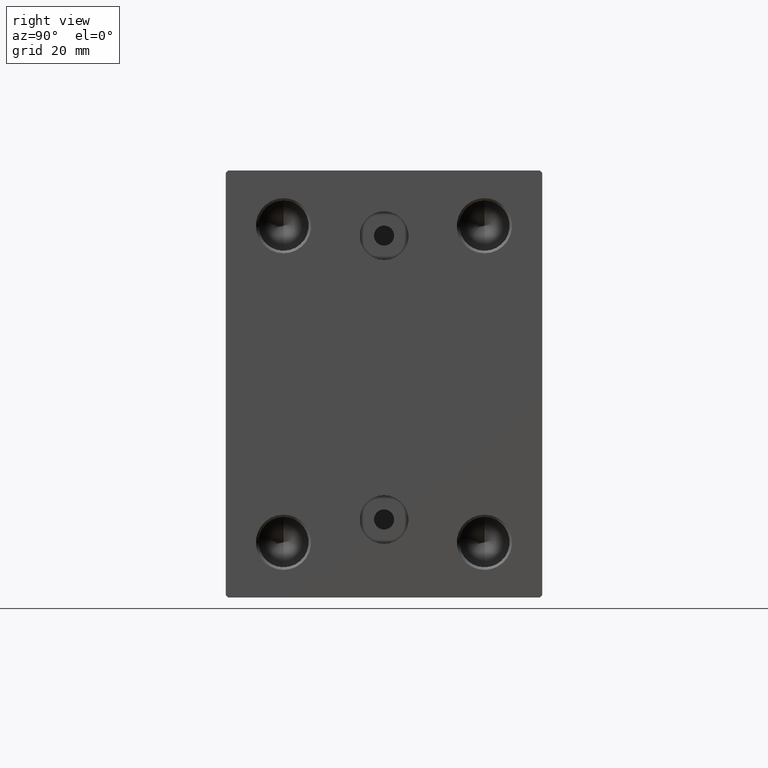
[diagram: clean part render]
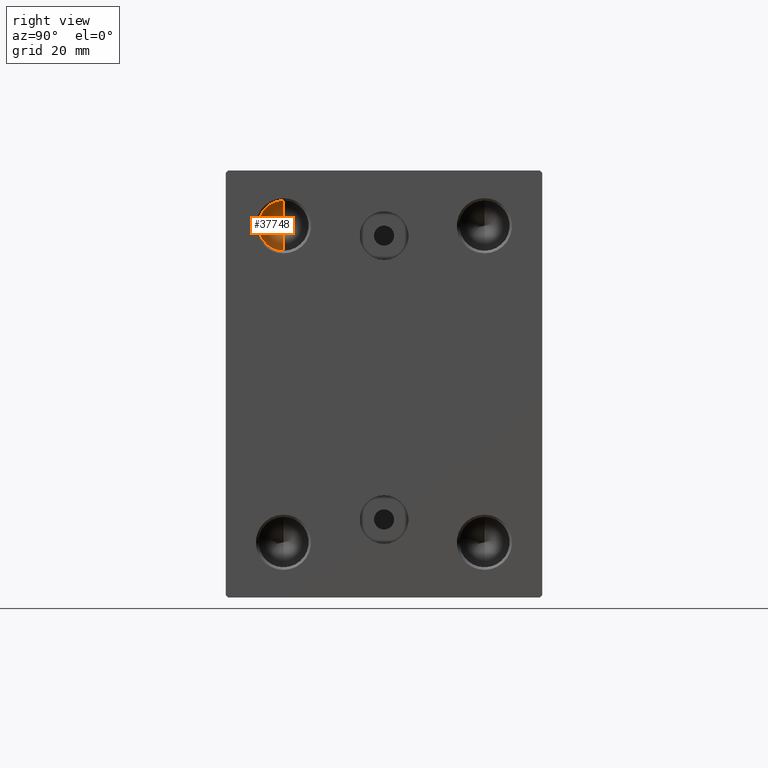
[diagram: same view with one face highlighted and labeled with its STEP entity id]
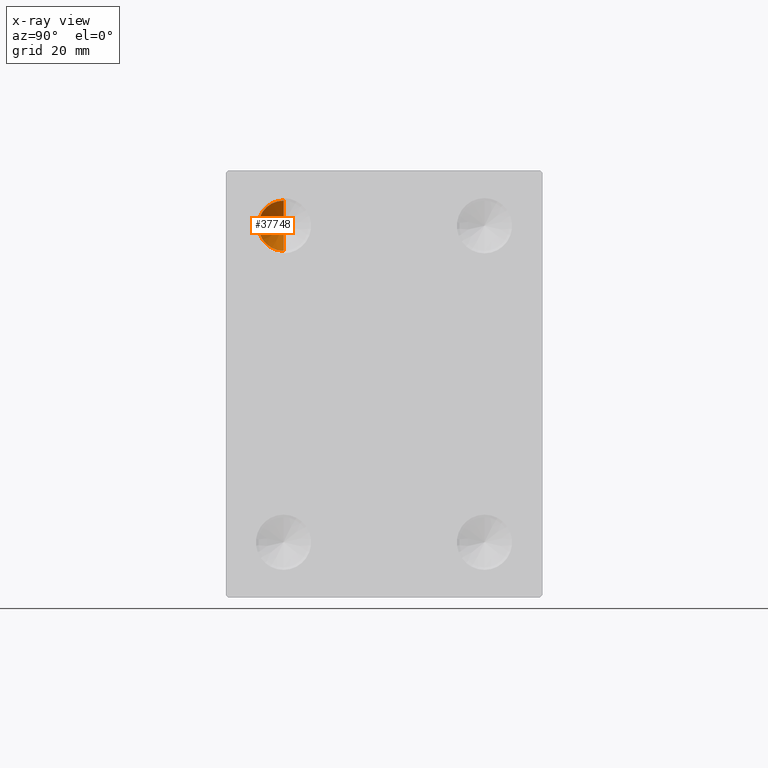
[diagram: x-ray of the same camera — body ghosted, the highlighted face saturated]
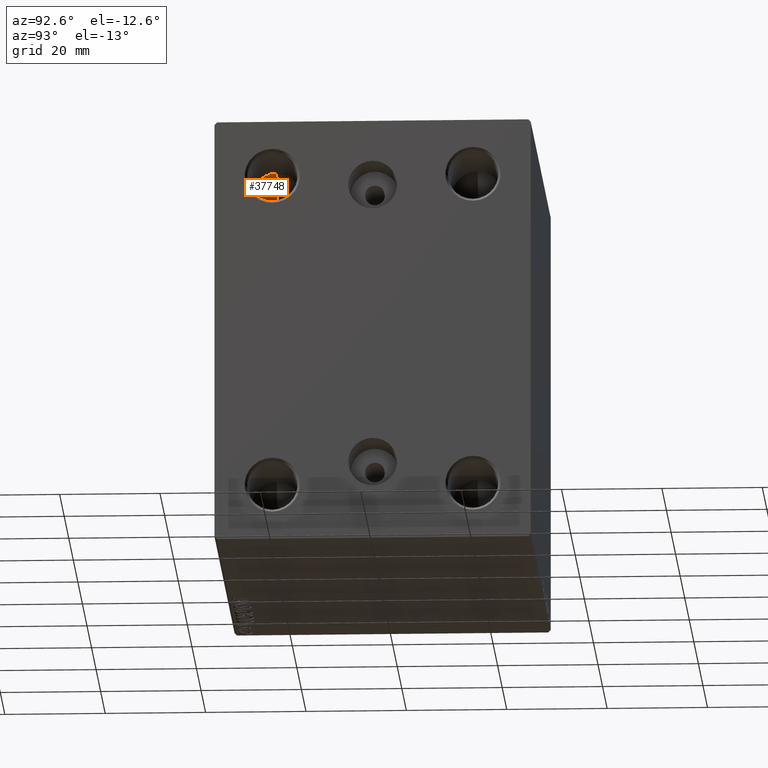
[diagram: same view with one face highlighted and labeled with its STEP entity id]
A machine part, right view. The second image highlights one B-rep face of the part: STEP entity #37748.
The next image is the same camera in x-ray: the body ghosted, the highlighted face saturated — about 0% of this face is hidden behind the body in this view.
A second angle (auxiliary view) of the same face is appended — the face is thin or edge-on in the first view.
In plain terms, the highlighted conical surface has half-angle 59 deg.
Its self-contained STEP definition (entity closure, byte-faithful):
#2746 = EDGE_CURVE ( 'NONE', #36286, #34680, #5107, .T. ) ;
#2866 = AXIS2_PLACEMENT_3D ( 'NONE', #16438, #20011, #40522 ) ;
#2985 = ORIENTED_EDGE ( 'NONE', *, *, #15888, .T. ) ;
#3521 = CIRCLE ( 'NONE', #34171, 4.999999999999997335 ) ;
#5107 = LINE ( 'NONE', #29643, #19697 ) ;
#5531 = DIRECTION ( 'NONE',  ( 0.5150380749100552658, -1.049727191138617833E-16, -0.8571673007021116675 ) ) ;
#7138 = DIRECTION ( 'NONE',  ( 0.5150380749100552658, 0.000000000000000000, 0.8571673007021116675 ) ) ;
#13484 = DIRECTION ( 'NONE',  ( -1.000000000000000000, 0.000000000000000000, 0.000000000000000000 ) ) ;
#15888 = EDGE_CURVE ( 'NONE', #36286, #36972, #20958, .T. ) ;
#16438 = CARTESIAN_POINT ( 'NONE',  ( 67.99999999999998579, -20.00000000000000355, 31.50000000000000000 ) ) ;
#19697 = VECTOR ( 'NONE', #5531, 1000.000000000000000 ) ;
#20011 = DIRECTION ( 'NONE',  ( 1.000000000000000000, -0.000000000000000000, -0.000000000000000000 ) ) ;
#20014 = VECTOR ( 'NONE', #7138, 1000.000000000000000 ) ;
#20223 = FACE_OUTER_BOUND ( 'NONE', #36672, .T. ) ;
#20958 = LINE ( 'NONE', #38137, #20014 ) ;
#23541 = DIRECTION ( 'NONE',  ( 0.000000000000000000, 0.000000000000000000, 1.000000000000000000 ) ) ;
#23965 = CARTESIAN_POINT ( 'NONE',  ( 67.99999999999998579, -20.00000000000000355, 31.50000000000000000 ) ) ;
#27549 = ORIENTED_EDGE ( 'NONE', *, *, #2746, .F. ) ;
#29643 = CARTESIAN_POINT ( 'NONE',  ( 67.99999999999998579, -20.00000000000000355, 26.50000000000000355 ) ) ;
#32654 = ORIENTED_EDGE ( 'NONE', *, *, #32895, .F. ) ;
#32895 = EDGE_CURVE ( 'NONE', #34680, #36972, #3521, .T. ) ;
#34171 = AXIS2_PLACEMENT_3D ( 'NONE', #23965, #13484, #23541 ) ;
#34680 = VERTEX_POINT ( 'NONE', #40133 ) ;
#36286 = VERTEX_POINT ( 'NONE', #41269 ) ;
#36672 = EDGE_LOOP ( 'NONE', ( #27549, #2985, #32654 ) ) ;
#36972 = VERTEX_POINT ( 'NONE', #41806 ) ;
#37748 = ADVANCED_FACE ( 'NONE', ( #20223 ), #38463, .F. ) ;
#38137 = CARTESIAN_POINT ( 'NONE',  ( 67.99999999999998579, -20.00000000000000355, 36.50000000000000000 ) ) ;
#38463 = CONICAL_SURFACE ( 'NONE', #2866, 4.999999999999997335, 1.029744258676653201 ) ;
#40133 = CARTESIAN_POINT ( 'NONE',  ( 67.99999999999998579, -20.00000000000000355, 26.50000000000000355 ) ) ;
#40522 = DIRECTION ( 'NONE',  ( 0.000000000000000000, 0.000000000000000000, 1.000000000000000000 ) ) ;
#41269 = CARTESIAN_POINT ( 'NONE',  ( 64.99569690486218576, -20.00000000000001066, 31.50000000000000000 ) ) ;
#41806 = CARTESIAN_POINT ( 'NONE',  ( 67.99999999999998579, -20.00000000000000355, 36.50000000000000000 ) ) ;